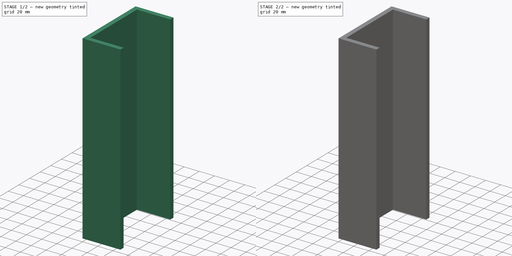
[diagram: build sequence overview — one tinted view per stage of 2, left to right]
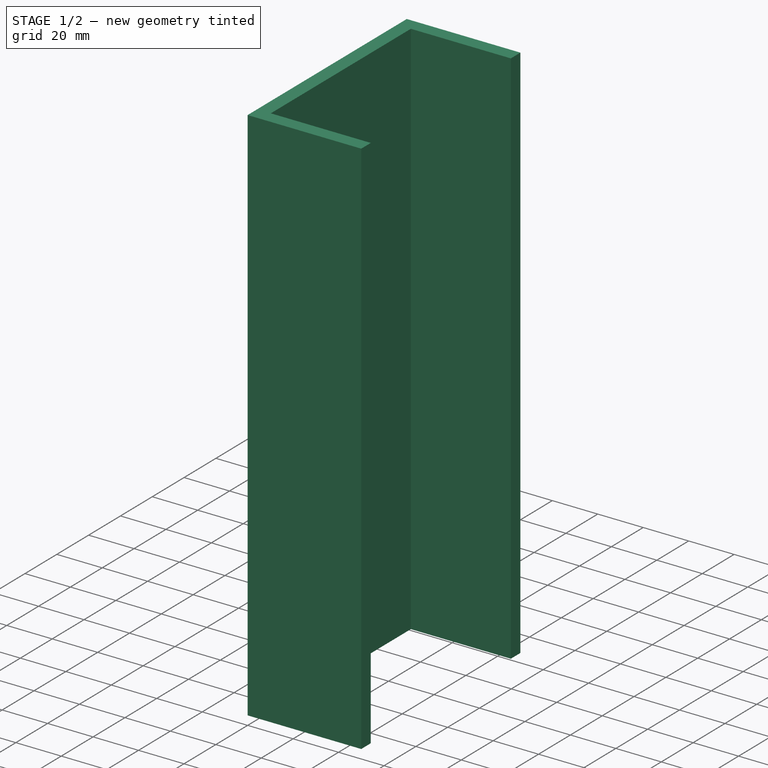
[diagram: stage 1 of 2 — iso view after this stage's code; geometry added in this stage tinted green]
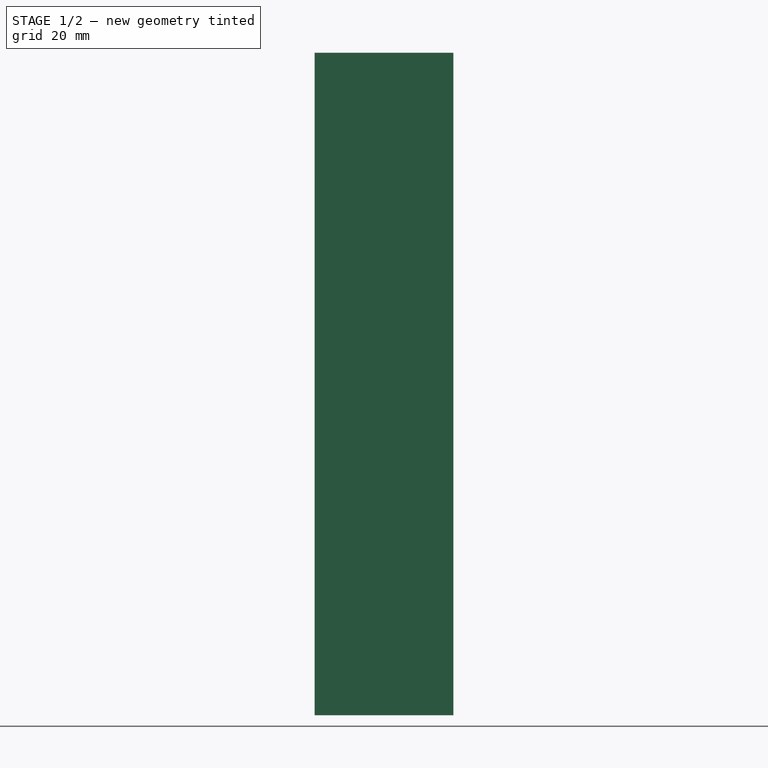
[diagram: stage 1 of 2 — front view after this stage's code; geometry added in this stage tinted green]
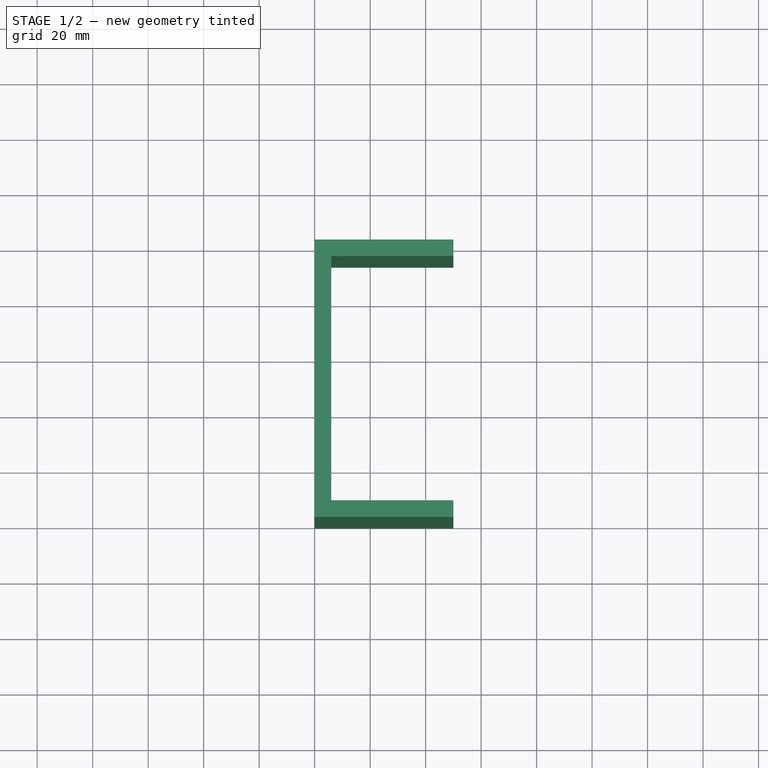
[diagram: stage 1 of 2 — top view after this stage's code; geometry added in this stage tinted green]
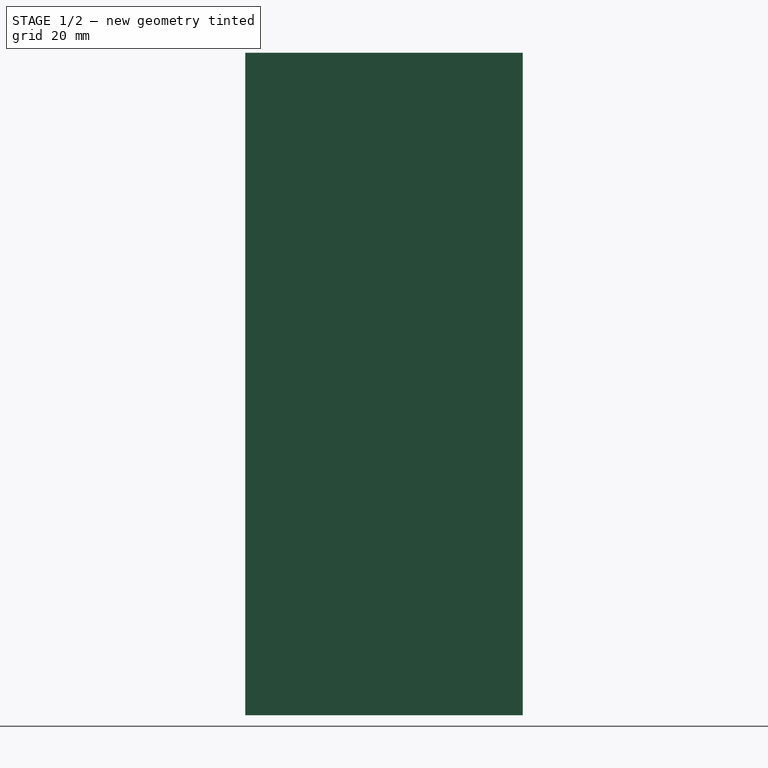
[diagram: stage 1 of 2 — right view after this stage's code; geometry added in this stage tinted green]
FCSTD DOCUMENT  (FreeCAD 1.0R39109 (Git))
Label: Frame_Channel
License: All rights reserved
LicenseURL: http://en.wikipedia.org/wiki/All_rights_reserved
objects: Sketcher::SketchObject×2, PartDesign::Pad×1, Spreadsheet::Sheet×1, PartDesign::Mirrored×1, PartDesign::Pocket×1, PartDesign::Body×1
note: 13 computed .brp shape members not serialized (recipe doc carries the construction recipe); baked Part::Feature solids carry a one-line shape summary decoded from their .brp
EXTERNAL_REF file=../../Master_of_Puppets.FCStd obj=Alternator
EXTERNAL_REF file=../../Master_of_Puppets.FCStd obj=Hub
EXTERNAL_REF file=../../Master_of_Puppets.FCStd obj=Spreadsheet

FEATURE [Sketcher::SketchObject] Sketch
  ArcFitTolerance = 0
  AttachmentSupport = -> [XY_Plane]
  FullyConstrained = true
  MakeInternals = false
  MapMode = 5
  expr: Constraints[11] = Spreadsheet.MetalLengthL
  expr: Constraints[12] = Spreadsheet.MetalLengthL
  expr: Constraints[13] = Spreadsheet.MetalThicknessL
  expr: Constraints[15] = Spreadsheet.MetalThicknessL
  sketch-geometry (6):
    g0: LineSegment StartX=0 StartY=50 StartZ=0 EndX=0 EndY=0 EndZ=0
    g1: LineSegment StartX=0 StartY=0 StartZ=0 EndX=50 EndY=0 EndZ=0
    g2: LineSegment StartX=50 StartY=0 StartZ=0 EndX=50 EndY=6 EndZ=0
    g3: LineSegment StartX=50 StartY=6 StartZ=0 EndX=6 EndY=6 EndZ=0
    g4: LineSegment StartX=6 StartY=6 StartZ=0 EndX=6 EndY=50 EndZ=0
    g5: LineSegment StartX=6 StartY=50 StartZ=0 EndX=0 EndY=50 EndZ=0
  constraints (17):
    c: Vertical(g0)
    c: Coincident(g0,g1)
    c: Horizontal(g1)
    c: Coincident(g1,g2)
    c: Vertical(g2)
    c: Coincident(g2,g3)
    c: Horizontal(g3)
    c: Coincident(g3,g4)
    c: Vertical(g4)
    c: Coincident(g4,g5)
    c: Coincident(g5,g0)
    c: DistanceX(g1,g1) = 50
    c: DistanceY(g0,g0) = 50
    c: DistanceY(g2,g2) = 6
    c: Horizontal(g5)
    c: DistanceX(g5,g5) = 6
    c: Coincident(g0,g-1)
FEATURE [PartDesign::Pad] Pad
  AllowMultiFace = false
  Direction = (0,0,1)
  Length = 238.75
  Length2 = 100
  Profile = -> Sketch
  Suppressed = false
  Type = 0
  expr: Length = Spreadsheet.Depth
FEATURE [Spreadsheet::Sheet] Spreadsheet
  cells = A1='Inputs; A2='MetalLengthL; B2(MetalLengthL)==Master_of_Puppets#Spreadsheet.MetalLengthL; A3='MetalThicknessL; B3(MetalThicknessL)==Master_of_Puppets#Spreadsheet.MetalThicknessL; A4='CalculatedWindTurbineShape; B4(CalculatedWindTurbineShape)==Master_of_Puppets#Spreadsheet.CalculatedWindTurbineShape; A5='StubAxleShaftRadius; B5(StubAxleShaftRadius)==Master_of_Puppets#Hub.StubAxleShaftRadius; A6='CoilLegWidth; B6(CoilLegWidth)==Master_of_Puppets#Spreadsheet.CoilLegWidth; A7='Depth; A8='TShapeLength; B8(TShapeLength)==Master_of_Puppets#Alternator.BC; A9='HShapeLength; B9(HShapeLength)==Master_of_Puppets#Alternator.HH; A10='StarShapeLength; B10(StarShapeLength)==Master_of_Puppets#Alternator.B; A11='Depth; B11(Depth)==CalculatedWindTurbineShape == <<T>> ? TShapeLength : (CalculatedWindTurbineShape == <<H>> ? HShapeLength : StarShapeLength); A12='HoleDistance; A13='OffsetHole; B13(OffsetHole)==Master_of_Puppets#Alternator.X; A14='MidpointHole; B14(MidpointHole)==Depth / 2; A15='HoleDistance; B15(HoleDistance)==CalculatedWindTurbineShape == <<T>> ? OffsetHole : MidpointHole; A16='Channel; A17='X; B17='Y; C17='Z; A18(ChannelX)==-MetalLengthL; B18(ChannelY)=0; C18(ChannelZ)==Depth
FEATURE [Sketcher::SketchObject] Sketch001
  ArcFitTolerance = 0
  AttachmentSupport = -> [Pad]
  FullyConstrained = true
  MakeInternals = false
  MapMode = 5
  Placement = pos=(6,0,0) rot=(0.57735,0.57735,0.57735;2.0944rad)
  expr: Constraints[0] = Spreadsheet.StubAxleShaftRadius
  expr: Constraints[1] = Spreadsheet.MetalLengthL
  expr: Constraints[2] = Spreadsheet.HoleDistance
  sketch-geometry (1):
    g0: Circle CenterX=50 CenterY=71.25 CenterZ=0 NormalX=0 NormalY=0 NormalZ=1 AngleXU=0 Radius=18
  constraints (3):
    c: Radius(g0) = 18
    c: Distance(g0,g-2) = 50
    c: Distance(g0,g-1) = 71.25
FEATURE [PartDesign::Mirrored] Mirrored
  BaseFeature = -> Pad
  MirrorPlane = -> Pad [Face6]
  Originals = -> [Pad]
  Suppressed = false
  TransformMode = 0
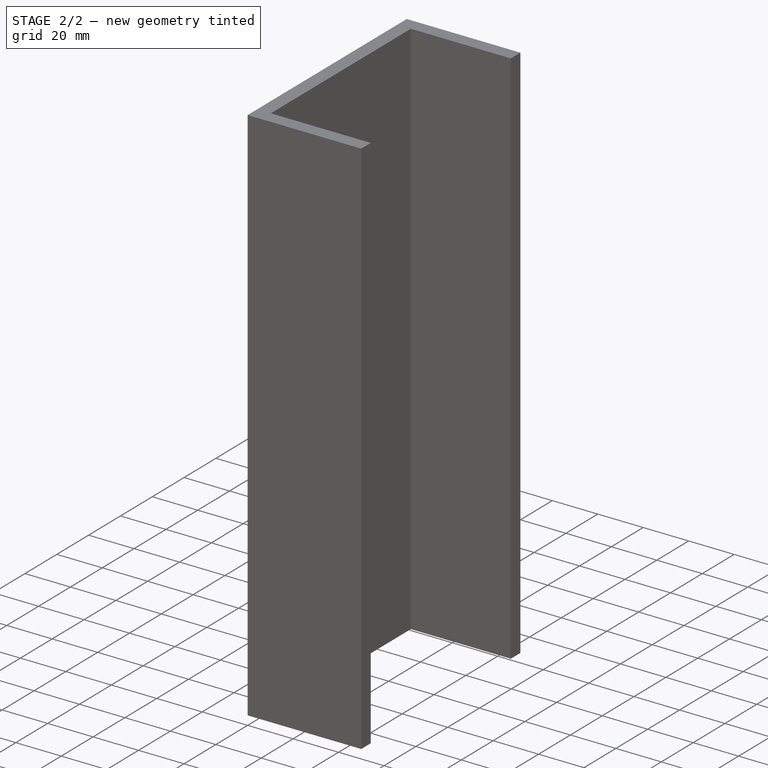
[diagram: stage 2 of 2 — iso view after this stage's code; geometry added in this stage tinted green]
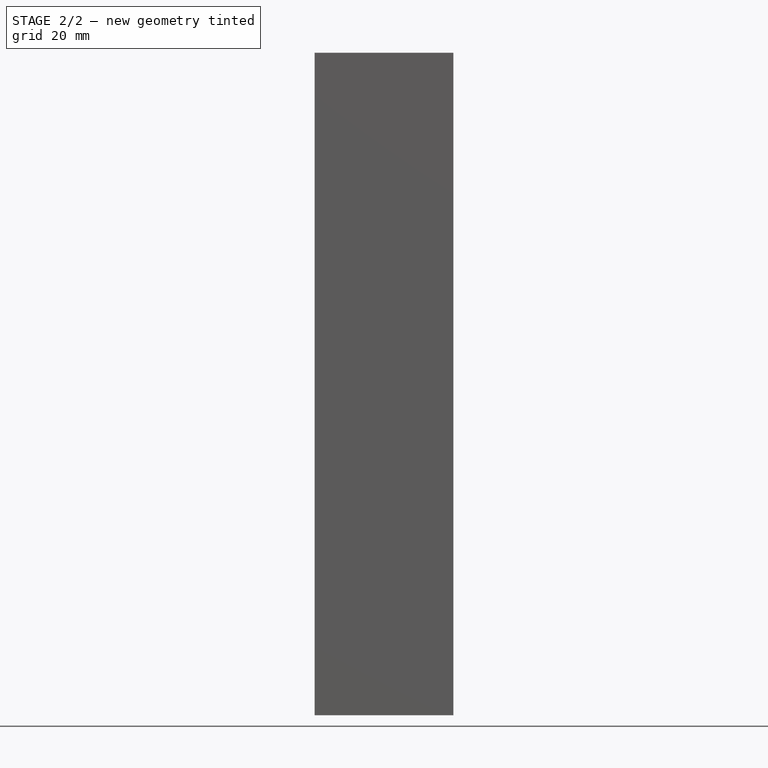
[diagram: stage 2 of 2 — front view after this stage's code; geometry added in this stage tinted green]
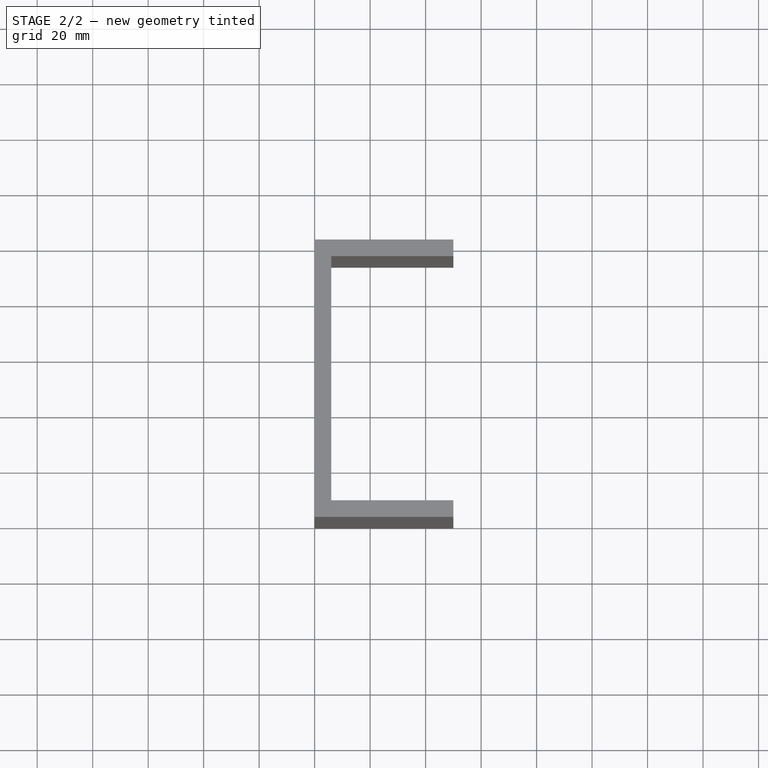
[diagram: stage 2 of 2 — top view after this stage's code; geometry added in this stage tinted green]
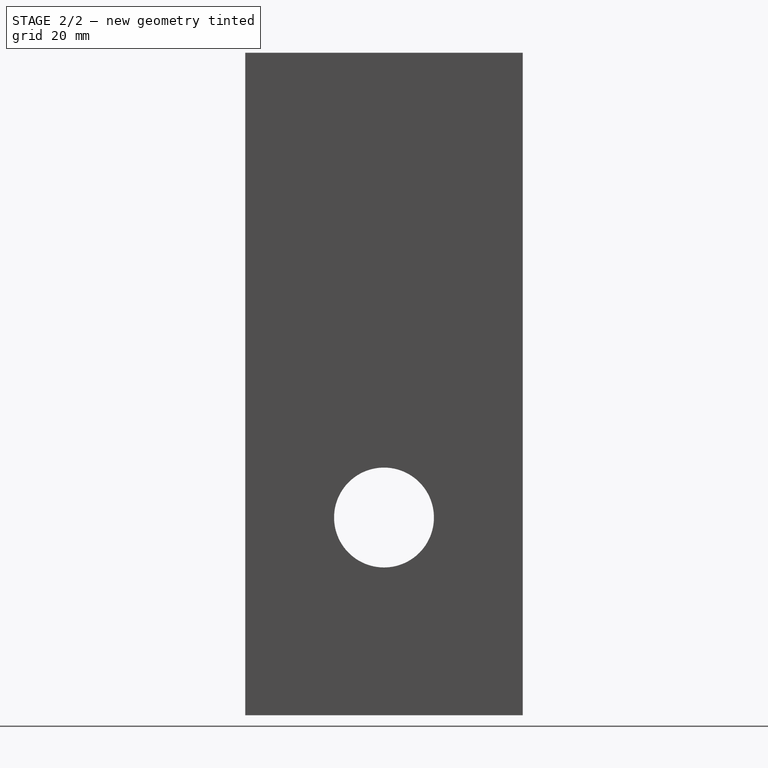
[diagram: stage 2 of 2 — right view after this stage's code; geometry added in this stage tinted green]
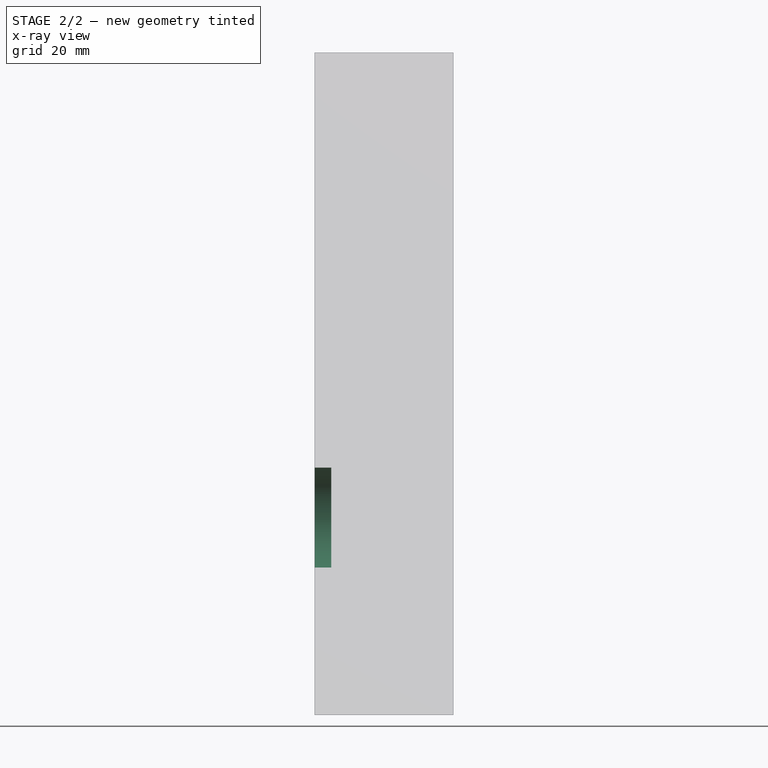
[diagram: stage 2 of 2 — x-ray composite at the front view; earlier geometry ghosted, this stage's added geometry solid]
FEATURE [PartDesign::Pocket] Pocket
  BaseFeature = -> Mirrored
  Direction = (-1,0,0)
  Length = 6
  Length2 = 100
  Profile = -> Sketch001
  Suppressed = false
  Type = 0
  expr: Length = Spreadsheet.MetalThicknessL
FEATURE [PartDesign::Body] Body  label="Frame_Channel"
  AllowCompound = false
  Group = -> [Sketch,Pad,Sketch001,Mirrored,Pocket]
  Origin = -> Origin
  Placement = pos=(-50,0,238.75) rot=(0.707107,0.707107,0;3.14159rad)
  Tip = -> Pocket
  expr: .Placement.Base.x = Spreadsheet.ChannelX
  expr: .Placement.Base.y = Spreadsheet.ChannelY
  expr: .Placement.Base.z = Spreadsheet.ChannelZ
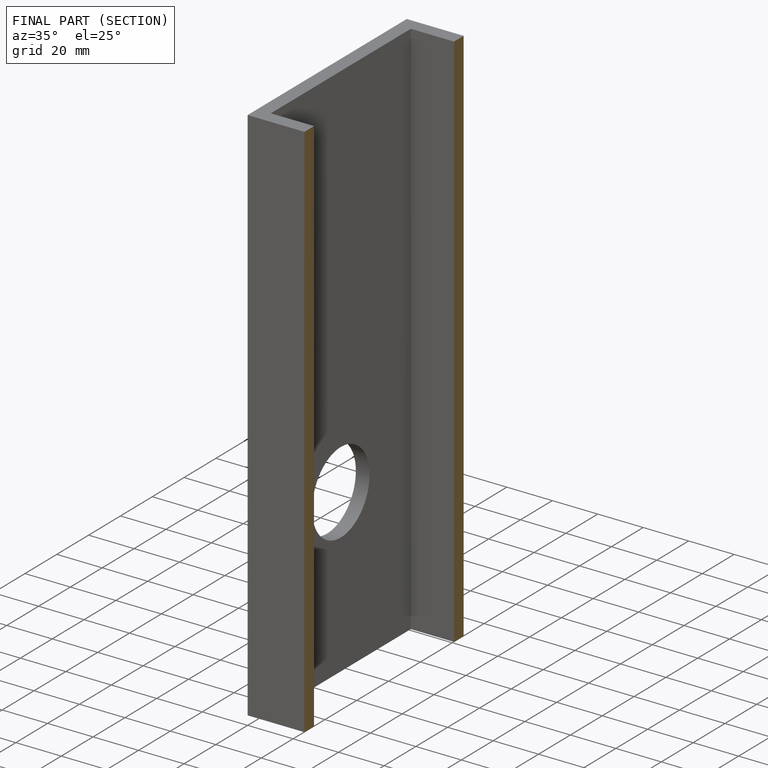
[diagram: finished part — half-section view (interior)]
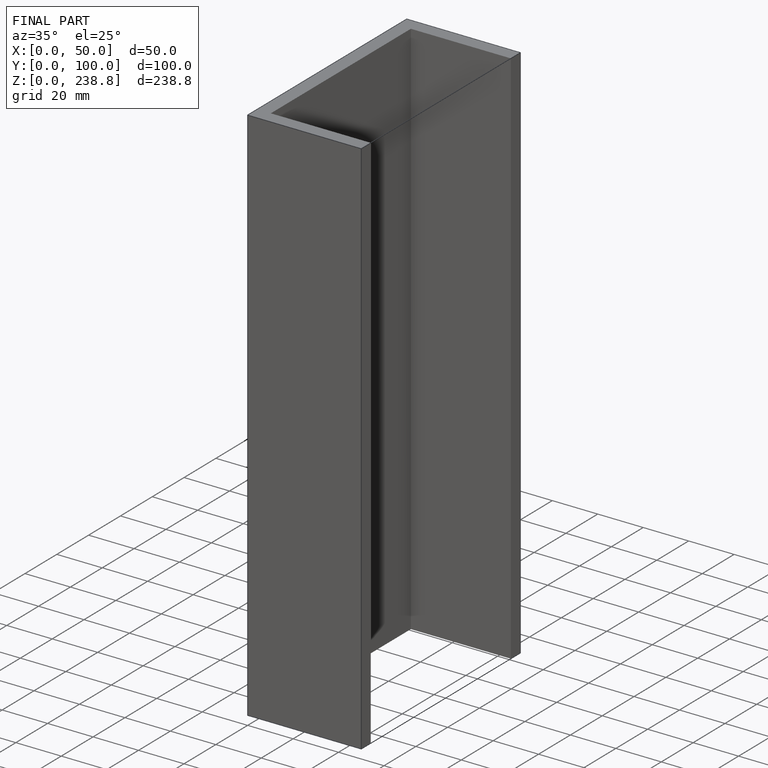
[diagram: finished part — iso view with bounding-box wireframe]
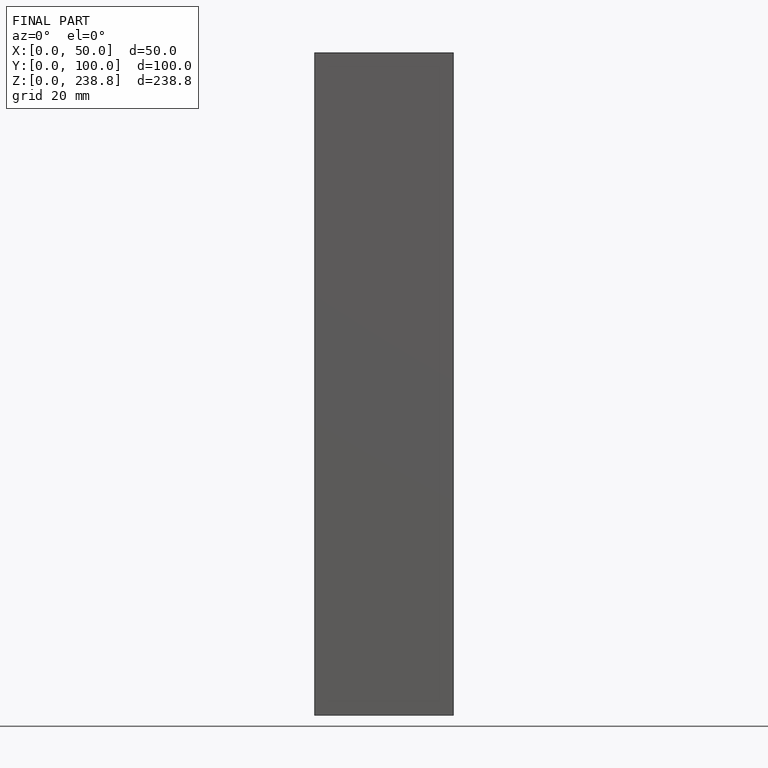
[diagram: finished part — front view with bounding-box wireframe]
